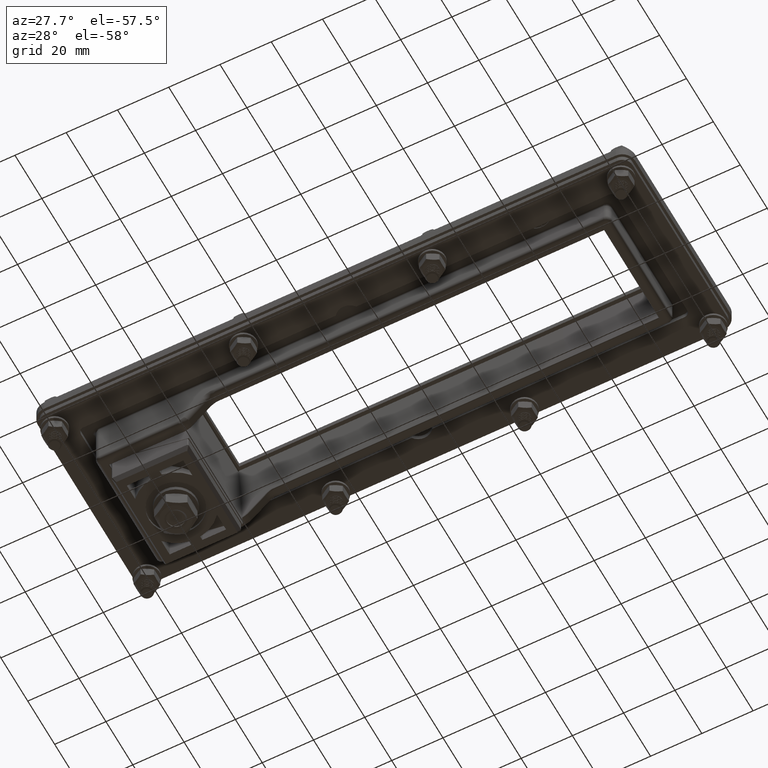
[diagram: clean part render]
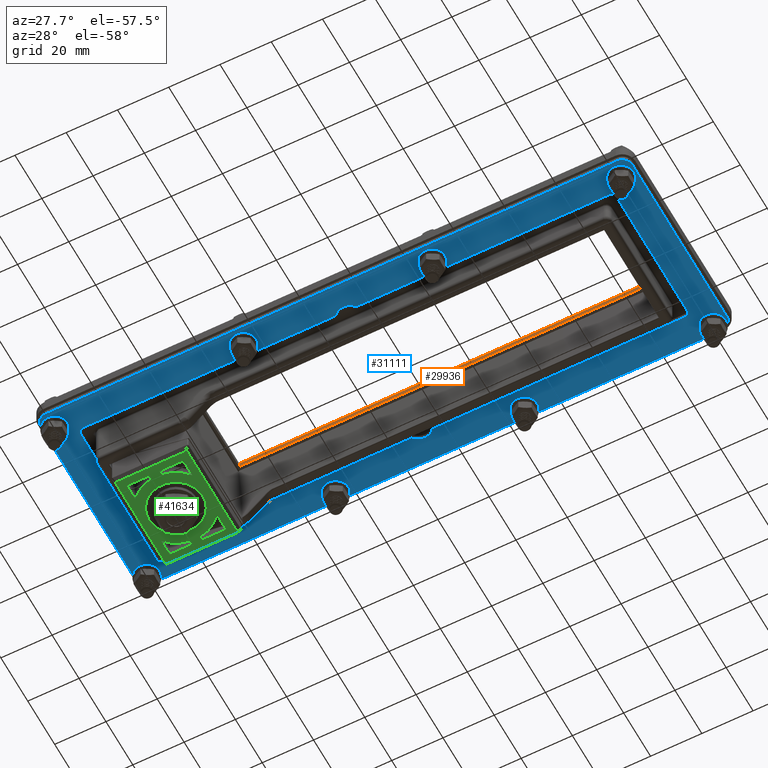
[diagram: same view with three faces highlighted in distinct colors, each labeled with its STEP entity id]
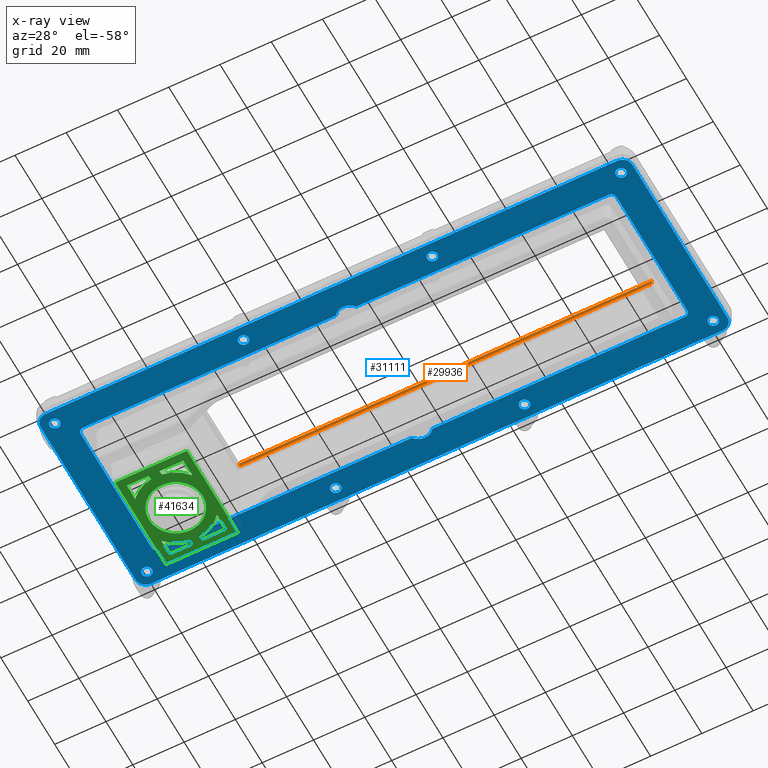
[diagram: x-ray of the same camera — body ghosted, the three highlighted faces saturated]
A machine part, auxiliary view with three faces highlighted in distinct colors.
The next image is the same camera in x-ray (body ghosted, the three faces saturated) — at least one of them is partly hidden behind the body in this view.
Their STEP definitions:

[orange] entity #29936 — the highlighted planar face has unit normal (0, 1, 0).
#16819=CARTESIAN_POINT('',(-66.220740230695725,18.550000000000008,21.0));
#16820=VERTEX_POINT('',#16819);
#16837=CARTESIAN_POINT('',(94.800000000000011,18.550000000000043,21.0));
#16838=VERTEX_POINT('',#16837);
#16845=CARTESIAN_POINT('',(94.800000000000011,18.550000000000043,20.999999999999996));
#16846=DIRECTION('',(-1.0,0.0,0.0));
#16847=VECTOR('',#16846,161.02074023069574);
#16848=LINE('',#16845,#16847);
#16849=EDGE_CURVE('',#16838,#16820,#16848,.T.);
#29428=CARTESIAN_POINT('',(-66.220740230695725,18.550000000000011,22.999999999999993));
#29429=VERTEX_POINT('',#29428);
#29430=CARTESIAN_POINT('',(94.800000000000011,18.550000000000043,23.0));
#29431=VERTEX_POINT('',#29430);
#29432=CARTESIAN_POINT('',(-66.220740230695725,18.550000000000008,22.999999999999993));
#29433=DIRECTION('',(1.0,0.0,0.0));
#29434=VECTOR('',#29433,161.02074023069574);
#29435=LINE('',#29432,#29434);
#29436=EDGE_CURVE('',#29429,#29431,#29435,.T.);
#29886=CARTESIAN_POINT('',(-66.220740230695725,18.550000000000008,22.999999999999993));
#29887=DIRECTION('',(0.0,0.0,-1.0));
#29888=VECTOR('',#29887,1.999999999999993);
#29889=LINE('',#29886,#29888);
#29890=EDGE_CURVE('',#29429,#16820,#29889,.T.);
#29920=CARTESIAN_POINT('',(-94.800000000000011,18.550000000000004,22.0));
#29921=DIRECTION('',(0.0,1.0,0.0));
#29922=DIRECTION('',(0.0,0.0,1.0));
#29923=AXIS2_PLACEMENT_3D('',#29920,#29921,#29922);
#29924=PLANE('',#29923);
#29925=ORIENTED_EDGE('',*,*,#29890,.T.);
#29926=ORIENTED_EDGE('',*,*,#16849,.F.);
#29927=CARTESIAN_POINT('',(94.800000000000011,18.550000000000043,21.000000000000004));
#29928=DIRECTION('',(0.0,0.0,1.0));
#29929=VECTOR('',#29928,1.999999999999993);
#29930=LINE('',#29927,#29929);
#29931=EDGE_CURVE('',#16838,#29431,#29930,.T.);
#29932=ORIENTED_EDGE('',*,*,#29931,.T.);
#29933=ORIENTED_EDGE('',*,*,#29436,.F.);
#29934=EDGE_LOOP('',(#29925,#29926,#29932,#29933));
#29935=FACE_OUTER_BOUND('',#29934,.T.);
#29936=ADVANCED_FACE('',(#29935),#29924,.F.);

[blue] entity #31111 — the highlighted planar face has unit normal (0, -0, 1).
#30155=CARTESIAN_POINT('',(255.52880737188866,66.758722795596711,0.0));
#30156=VERTEX_POINT('',#30155);
#30163=CARTESIAN_POINT('',(157.02880737188869,66.758722795596711,0.0));
#30164=VERTEX_POINT('',#30163);
#30165=CARTESIAN_POINT('',(157.02880737188866,66.758722795596697,0.0));
#30166=DIRECTION('',(1.0,0.0,0.0));
#30167=VECTOR('',#30166,98.499999999999972);
#30168=LINE('',#30165,#30167);
#30169=EDGE_CURVE('',#30164,#30156,#30168,.T.);
#30195=CARTESIAN_POINT('',(149.0288073718886,66.75872279559664,0.0));
#30196=VERTEX_POINT('',#30195);
#30197=CARTESIAN_POINT('',(153.0288073718886,69.758722795596611,0.0));
#30198=DIRECTION('',(0.0,0.0,1.0));
#30199=DIRECTION('',(-0.800000000000003,-0.599999999999995,0.0));
#30200=AXIS2_PLACEMENT_3D('',#30197,#30198,#30199);
#30201=CIRCLE('',#30200,5.0);
#30202=EDGE_CURVE('',#30196,#30164,#30201,.T.);
#30227=CARTESIAN_POINT('',(50.528807371888661,66.758722795596611,0.0));
#30228=VERTEX_POINT('',#30227);
#30229=CARTESIAN_POINT('',(50.528807371888661,66.758722795596597,0.0));
#30230=DIRECTION('',(1.0,0.0,0.0));
#30231=VECTOR('',#30230,98.499999999999915);
#30232=LINE('',#30229,#30231);
#30233=EDGE_CURVE('',#30228,#30196,#30232,.T.);
#30259=CARTESIAN_POINT('',(48.528807371888661,68.758722795596611,0.0));
#30260=VERTEX_POINT('',#30259);
#30261=CARTESIAN_POINT('',(50.528807371888661,68.758722795596611,0.0));
#30262=DIRECTION('',(0.0,0.0,1.0));
#30263=DIRECTION('',(-1.0,0.0,0.0));
#30264=AXIS2_PLACEMENT_3D('',#30261,#30262,#30263);
#30265=CIRCLE('',#30264,2.000000000000002);
#30266=EDGE_CURVE('',#30260,#30228,#30265,.T.);
#30291=CARTESIAN_POINT('',(48.528807371888661,121.25872279559647,0.0));
#30292=VERTEX_POINT('',#30291);
#30293=CARTESIAN_POINT('',(48.528807371888675,121.25872279559647,0.0));
#30294=DIRECTION('',(0.0,-1.0,0.0));
#30295=VECTOR('',#30294,52.499999999999858);
#30296=LINE('',#30293,#30295);
#30297=EDGE_CURVE('',#30292,#30260,#30296,.T.);
#30323=CARTESIAN_POINT('',(50.528807371888661,123.25872279559648,0.0));
#30324=VERTEX_POINT('',#30323);
#30325=CARTESIAN_POINT('',(50.528807371888661,121.25872279559647,0.0));
#30326=DIRECTION('',(0.0,0.0,1.0));
#30327=DIRECTION('',(0.0,1.0,0.0));
#30328=AXIS2_PLACEMENT_3D('',#30325,#30326,#30327);
#30329=CIRCLE('',#30328,1.999999999999993);
#30330=EDGE_CURVE('',#30324,#30292,#30329,.T.);
#30355=CARTESIAN_POINT('',(149.0288073718886,123.25872279559648,0.0));
#30356=VERTEX_POINT('',#30355);
#30357=CARTESIAN_POINT('',(149.0288073718886,123.2587227955965,0.0));
#30358=DIRECTION('',(-1.0,0.0,0.0));
#30359=VECTOR('',#30358,98.499999999999943);
#30360=LINE('',#30357,#30359);
#30361=EDGE_CURVE('',#30356,#30324,#30360,.T.);
#30387=CARTESIAN_POINT('',(157.0288073718886,123.25872279559647,0.0));
#30388=VERTEX_POINT('',#30387);
#30389=CARTESIAN_POINT('',(153.0288073718886,120.25872279559648,0.0));
#30390=DIRECTION('',(0.0,0.0,1.0));
#30391=DIRECTION('',(0.800000000000002,0.599999999999997,0.0));
#30392=AXIS2_PLACEMENT_3D('',#30389,#30390,#30391);
#30393=CIRCLE('',#30392,5.0);
#30394=EDGE_CURVE('',#30388,#30356,#30393,.T.);
#30419=CARTESIAN_POINT('',(255.52880737188866,123.25872279559648,0.0));
#30420=VERTEX_POINT('',#30419);
#30421=CARTESIAN_POINT('',(255.52880737188866,123.25872279559648,0.0));
#30422=DIRECTION('',(-1.0,0.0,0.0));
#30423=VECTOR('',#30422,98.500000000000057);
#30424=LINE('',#30421,#30423);
#30425=EDGE_CURVE('',#30420,#30388,#30424,.T.);
#30451=CARTESIAN_POINT('',(257.52880737188866,121.25872279559647,0.0));
#30452=VERTEX_POINT('',#30451);
#30453=CARTESIAN_POINT('',(255.52880737188866,121.2587227955965,0.0));
#30454=DIRECTION('',(0.0,0.0,1.0));
#30455=DIRECTION('',(1.0,0.0,0.0));
#30456=AXIS2_PLACEMENT_3D('',#30453,#30454,#30455);
#30457=CIRCLE('',#30456,1.999999999999993);
#30458=EDGE_CURVE('',#30452,#30420,#30457,.T.);
#30483=CARTESIAN_POINT('',(257.52880737188866,68.758722795596711,0.0));
#30484=VERTEX_POINT('',#30483);
#30485=CARTESIAN_POINT('',(257.52880737188866,68.758722795596711,0.0));
#30486=DIRECTION('',(0.0,1.0,0.0));
#30487=VECTOR('',#30486,52.499999999999758);
#30488=LINE('',#30485,#30487);
#30489=EDGE_CURVE('',#30484,#30452,#30488,.T.);
#30513=CARTESIAN_POINT('',(255.52880737188866,68.758722795596697,0.0));
#30514=DIRECTION('',(0.0,0.0,1.0));
#30515=DIRECTION('',(0.0,-1.0,0.0));
#30516=AXIS2_PLACEMENT_3D('',#30513,#30514,#30515);
#30517=CIRCLE('',#30516,1.999999999999993);
#30518=EDGE_CURVE('',#30156,#30484,#30517,.T.);
#30540=CARTESIAN_POINT('',(44.528807371888632,60.758722795596583,0.0));
#30541=VERTEX_POINT('',#30540);
#30542=CARTESIAN_POINT('',(42.528807371888632,60.758722795596583,0.0));
#30543=DIRECTION('',(0.0,0.0,1.0));
#30544=DIRECTION('',(-1.0,0.0,0.0));
#30545=AXIS2_PLACEMENT_3D('',#30542,#30543,#30544);
#30546=CIRCLE('',#30545,2.0);
#30547=EDGE_CURVE('',#30541,#30541,#30546,.T.);
#30568=CARTESIAN_POINT('',(265.52880737188866,129.2587227955965,0.0));
#30569=VERTEX_POINT('',#30568);
#30570=CARTESIAN_POINT('',(263.52880737188866,129.2587227955965,0.0));
#30571=DIRECTION('',(0.0,0.0,1.0));
#30572=DIRECTION('',(-1.0,0.0,0.0));
#30573=AXIS2_PLACEMENT_3D('',#30570,#30571,#30572);
#30574=CIRCLE('',#30573,2.0);
#30575=EDGE_CURVE('',#30569,#30569,#30574,.T.);
#30596=CARTESIAN_POINT('',(265.52880737188866,60.758722795596583,0.0));
#30597=VERTEX_POINT('',#30596);
#30598=CARTESIAN_POINT('',(263.52880737188866,60.758722795596583,0.0));
#30599=DIRECTION('',(0.0,0.0,1.0));
#30600=DIRECTION('',(-1.0,0.0,0.0));
#30601=AXIS2_PLACEMENT_3D('',#30598,#30599,#30600);
#30602=CIRCLE('',#30601,2.0);
#30603=EDGE_CURVE('',#30597,#30597,#30602,.T.);
#30624=CARTESIAN_POINT('',(118.19880737188856,129.25872279559644,0.0));
#30625=VERTEX_POINT('',#30624);
#30626=CARTESIAN_POINT('',(116.19880737188858,129.25872279559644,0.0));
#30627=DIRECTION('',(0.0,0.0,1.0));
#30628=DIRECTION('',(-1.0,0.0,0.0));
#30629=AXIS2_PLACEMENT_3D('',#30626,#30627,#30628);
#30630=CIRCLE('',#30629,2.0);
#30631=EDGE_CURVE('',#30625,#30625,#30630,.T.);
#30652=CARTESIAN_POINT('',(191.85880737188856,129.25872279559644,0.0));
#30653=VERTEX_POINT('',#30652);
#30654=CARTESIAN_POINT('',(189.85880737188859,129.25872279559644,0.0));
#30655=DIRECTION('',(0.0,0.0,1.0));
#30656=DIRECTION('',(-1.0,0.0,0.0));
#30657=AXIS2_PLACEMENT_3D('',#30654,#30655,#30656);
#30658=CIRCLE('',#30657,2.0);
#30659=EDGE_CURVE('',#30653,#30653,#30658,.T.);
#30680=CARTESIAN_POINT('',(191.86880737188864,60.758722795596583,0.0));
#30681=VERTEX_POINT('',#30680);
#30682=CARTESIAN_POINT('',(189.86880737188866,60.758722795596583,0.0));
#30683=DIRECTION('',(0.0,0.0,1.0));
#30684=DIRECTION('',(-1.0,0.0,0.0));
#30685=AXIS2_PLACEMENT_3D('',#30682,#30683,#30684);
#30686=CIRCLE('',#30685,2.0);
#30687=EDGE_CURVE('',#30681,#30681,#30686,.T.);
#30708=CARTESIAN_POINT('',(118.20880737188864,60.758722795596583,0.0));
#30709=VERTEX_POINT('',#30708);
#30710=CARTESIAN_POINT('',(116.20880737188864,60.758722795596583,0.0));
#30711=DIRECTION('',(0.0,0.0,1.0));
#30712=DIRECTION('',(-1.0,0.0,0.0));
#30713=AXIS2_PLACEMENT_3D('',#30710,#30711,#30712);
#30714=CIRCLE('',#30713,2.0);
#30715=EDGE_CURVE('',#30709,#30709,#30714,.T.);
#30736=CARTESIAN_POINT('',(44.528807371888632,129.2587227955965,0.0));
#30737=VERTEX_POINT('',#30736);
#30738=CARTESIAN_POINT('',(42.528807371888632,129.2587227955965,0.0));
#30739=DIRECTION('',(0.0,0.0,1.0));
#30740=DIRECTION('',(-1.0,0.0,0.0));
#30741=AXIS2_PLACEMENT_3D('',#30738,#30739,#30740);
#30742=CIRCLE('',#30741,2.0);
#30743=EDGE_CURVE('',#30737,#30737,#30742,.T.);
#30763=CARTESIAN_POINT('',(268.52880737188855,59.758722795596611,0.0));
#30764=VERTEX_POINT('',#30763);
#30771=CARTESIAN_POINT('',(268.52880737188855,130.25872279559647,0.0));
#30772=VERTEX_POINT('',#30771);
#30773=CARTESIAN_POINT('',(268.52880737188855,130.25872279559647,0.0));
#30774=DIRECTION('',(0.0,-1.0,0.0));
#30775=VECTOR('',#30774,70.499999999999858);
#30776=LINE('',#30773,#30775);
#30777=EDGE_CURVE('',#30772,#30764,#30776,.T.);
#30802=CARTESIAN_POINT('',(264.52880737188855,55.758722795596611,0.0));
#30803=VERTEX_POINT('',#30802);
#30810=CARTESIAN_POINT('',(264.52880737188855,59.758722795596611,0.0));
#30811=DIRECTION('',(0.0,0.0,-1.0));
#30812=DIRECTION('',(0.0,1.0,0.0));
#30813=AXIS2_PLACEMENT_3D('',#30810,#30811,#30812);
#30814=CIRCLE('',#30813,3.999999999999995);
#30815=EDGE_CURVE('',#30764,#30803,#30814,.T.);
#30834=CARTESIAN_POINT('',(41.528807371888632,55.758722795596611,0.0));
#30835=VERTEX_POINT('',#30834);
#30842=CARTESIAN_POINT('',(264.52880737188855,55.758722795596611,0.0));
#30843=DIRECTION('',(-1.0,0.0,0.0));
#30844=VECTOR('',#30843,222.99999999999994);
#30845=LINE('',#30842,#30844);
#30846=EDGE_CURVE('',#30803,#30835,#30845,.T.);
#30866=CARTESIAN_POINT('',(37.528807371888632,59.758722795596611,0.0));
#30867=VERTEX_POINT('',#30866);
#30874=CARTESIAN_POINT('',(41.528807371888632,59.758722795596611,0.0));
#30875=DIRECTION('',(0.0,0.0,-1.0));
#30876=DIRECTION('',(1.0,0.0,0.0));
#30877=AXIS2_PLACEMENT_3D('',#30874,#30875,#30876);
#30878=CIRCLE('',#30877,4.000000000000004);
#30879=EDGE_CURVE('',#30835,#30867,#30878,.T.);
#30898=CARTESIAN_POINT('',(37.528807371888632,130.2587227955965,0.0));
#30899=VERTEX_POINT('',#30898);
#30906=CARTESIAN_POINT('',(37.528807371888632,59.758722795596611,0.0));
#30907=DIRECTION('',(0.0,1.0,0.0));
#30908=VECTOR('',#30907,70.499999999999886);
#30909=LINE('',#30906,#30908);
#30910=EDGE_CURVE('',#30867,#30899,#30909,.T.);
#30930=CARTESIAN_POINT('',(41.528807371888661,134.2587227955965,0.0));
#30931=VERTEX_POINT('',#30930);
#30938=CARTESIAN_POINT('',(41.528807371888661,130.25872279559647,0.0));
#30939=DIRECTION('',(0.0,0.0,-1.0));
#30940=DIRECTION('',(0.0,-1.0,0.0));
#30941=AXIS2_PLACEMENT_3D('',#30938,#30939,#30940);
#30942=CIRCLE('',#30941,4.000000000000012);
#30943=EDGE_CURVE('',#30899,#30931,#30942,.T.);
#30962=CARTESIAN_POINT('',(264.52880737188866,134.2587227955965,0.0));
#30963=VERTEX_POINT('',#30962);
#30970=CARTESIAN_POINT('',(41.528807371888661,134.2587227955965,0.0));
#30971=DIRECTION('',(1.0,0.0,0.0));
#30972=VECTOR('',#30971,223.0);
#30973=LINE('',#30970,#30972);
#30974=EDGE_CURVE('',#30931,#30963,#30973,.T.);
#30993=CARTESIAN_POINT('',(264.52880737188855,130.25872279559647,0.0));
#30994=DIRECTION('',(0.0,0.0,-1.0));
#30995=DIRECTION('',(-1.0,0.0,0.0));
#30996=AXIS2_PLACEMENT_3D('',#30993,#30994,#30995);
#30997=CIRCLE('',#30996,4.000000000000021);
#30998=EDGE_CURVE('',#30963,#30772,#30997,.T.);
#31058=CARTESIAN_POINT('',(153.0288073718886,95.008722795596555,0.0));
#31059=DIRECTION('',(0.0,0.0,1.0));
#31060=DIRECTION('',(1.0,0.0,0.0));
#31061=AXIS2_PLACEMENT_3D('',#31058,#31059,#31060);
#31062=PLANE('',#31061);
#31063=ORIENTED_EDGE('',*,*,#30998,.T.);
#31064=ORIENTED_EDGE('',*,*,#30777,.T.);
#31065=ORIENTED_EDGE('',*,*,#30815,.T.);
#31066=ORIENTED_EDGE('',*,*,#30846,.T.);
#31067=ORIENTED_EDGE('',*,*,#30879,.T.);
#31068=ORIENTED_EDGE('',*,*,#30910,.T.);
#31069=ORIENTED_EDGE('',*,*,#30943,.T.);
#31070=ORIENTED_EDGE('',*,*,#30974,.T.);
#31071=EDGE_LOOP('',(#31063,#31064,#31065,#31066,#31067,#31068,#31069,#31070));
#31072=FACE_OUTER_BOUND('',#31071,.T.);
#31073=ORIENTED_EDGE('',*,*,#30169,.T.);
#31074=ORIENTED_EDGE('',*,*,#30518,.T.);
#31075=ORIENTED_EDGE('',*,*,#30489,.T.);
#31076=ORIENTED_EDGE('',*,*,#30458,.T.);
#31077=ORIENTED_EDGE('',*,*,#30425,.T.);
#31078=ORIENTED_EDGE('',*,*,#30394,.T.);
#31079=ORIENTED_EDGE('',*,*,#30361,.T.);
#31080=ORIENTED_EDGE('',*,*,#30330,.T.);
#31081=ORIENTED_EDGE('',*,*,#30297,.T.);
#31082=ORIENTED_EDGE('',*,*,#30266,.T.);
#31083=ORIENTED_EDGE('',*,*,#30233,.T.);
#31084=ORIENTED_EDGE('',*,*,#30202,.T.);
#31085=EDGE_LOOP('',(#31073,#31074,#31075,#31076,#31077,#31078,#31079,#31080,#31081,#31082,#31083,#31084));
#31086=FACE_BOUND('',#31085,.T.);
#31087=ORIENTED_EDGE('',*,*,#30547,.T.);
#31088=EDGE_LOOP('',(#31087));
#31089=FACE_BOUND('',#31088,.T.);
#31090=ORIENTED_EDGE('',*,*,#30575,.T.);
#31091=EDGE_LOOP('',(#31090));
#31092=FACE_BOUND('',#31091,.T.);
#31093=ORIENTED_EDGE('',*,*,#30603,.T.);
#31094=EDGE_LOOP('',(#31093));
#31095=FACE_BOUND('',#31094,.T.);
#31096=ORIENTED_EDGE('',*,*,#30631,.T.);
#31097=EDGE_LOOP('',(#31096));
#31098=FACE_BOUND('',#31097,.T.);
#31099=ORIENTED_EDGE('',*,*,#30659,.T.);
#31100=EDGE_LOOP('',(#31099));
#31101=FACE_BOUND('',#31100,.T.);
#31102=ORIENTED_EDGE('',*,*,#30687,.T.);
#31103=EDGE_LOOP('',(#31102));
#31104=FACE_BOUND('',#31103,.T.);
#31105=ORIENTED_EDGE('',*,*,#30715,.T.);
#31106=EDGE_LOOP('',(#31105));
#31107=FACE_BOUND('',#31106,.T.);
#31108=ORIENTED_EDGE('',*,*,#30743,.T.);
#31109=EDGE_LOOP('',(#31108));
#31110=FACE_BOUND('',#31109,.T.);
#31111=ADVANCED_FACE('',(#31072,#31086,#31089,#31092,#31095,#31098,#31101,#31104,#31107,#31110),#31062,.F.);

[green] entity #41634 — the highlighted planar face has unit normal (0, -0, 1).
#41147=CARTESIAN_POINT('',(566.70626329083245,442.98383945658173,13.75));
#41148=VERTEX_POINT('',#41147);
#41149=CARTESIAN_POINT('',(556.20626329083257,442.98383945658173,13.75));
#41150=DIRECTION('',(0.0,0.0,-1.0));
#41151=DIRECTION('',(-1.0,0.0,0.0));
#41152=AXIS2_PLACEMENT_3D('',#41149,#41150,#41151);
#41153=CIRCLE('',#41152,10.5);
#41154=EDGE_CURVE('',#41148,#41148,#41153,.T.);
#41164=CARTESIAN_POINT('',(569.95626329083257,461.43662586108172,13.75));
#41165=VERTEX_POINT('',#41164);
#41183=CARTESIAN_POINT('',(569.50904969533235,461.88383945658182,13.75));
#41184=VERTEX_POINT('',#41183);
#41191=CARTESIAN_POINT('',(569.39724629645741,461.3248224622069,13.75));
#41192=DIRECTION('',(0.0,0.0,-1.0));
#41193=DIRECTION('',(0.707106781186594,0.707106781186501,0.0));
#41194=AXIS2_PLACEMENT_3D('',#41191,#41192,#41193);
#41195=ELLIPSE('',#41194,0.612372435695783,0.5);
#41196=EDGE_CURVE('',#41184,#41165,#41195,.T.);
#41257=CARTESIAN_POINT('',(569.95626329083257,424.53105305208169,13.75));
#41258=VERTEX_POINT('',#41257);
#41259=CARTESIAN_POINT('',(569.95626329083257,461.43662586108172,13.75));
#41260=DIRECTION('',(0.0,-1.0,0.0));
#41261=VECTOR('',#41260,36.905572809000034);
#41262=LINE('',#41259,#41261);
#41263=EDGE_CURVE('',#41165,#41258,#41262,.T.);
#41297=CARTESIAN_POINT('',(569.50904969533235,424.0838394565817,13.75));
#41298=VERTEX_POINT('',#41297);
#41315=CARTESIAN_POINT('',(569.39724629645741,424.6428564509564,13.75));
#41316=DIRECTION('',(0.0,0.0,-1.0));
#41317=DIRECTION('',(0.707106781186594,-0.707106781186501,0.0));
#41318=AXIS2_PLACEMENT_3D('',#41315,#41316,#41317);
#41319=ELLIPSE('',#41318,0.612372435695783,0.5);
#41320=EDGE_CURVE('',#41258,#41298,#41319,.T.);
#41374=CARTESIAN_POINT('',(542.40347688633233,424.0838394565817,13.75));
#41375=VERTEX_POINT('',#41374);
#41382=CARTESIAN_POINT('',(541.95626329083245,424.53105305208169,13.75));
#41383=VERTEX_POINT('',#41382);
#41384=CARTESIAN_POINT('',(542.51528028520738,424.64285645095674,13.75));
#41385=DIRECTION('',(0.0,0.0,-1.0));
#41386=DIRECTION('',(-0.707106781186548,-0.707106781186548,0.0));
#41387=AXIS2_PLACEMENT_3D('',#41384,#41385,#41386);
#41388=ELLIPSE('',#41387,0.612372435695794,0.5);
#41389=EDGE_CURVE('',#41375,#41383,#41388,.T.);
#41415=CARTESIAN_POINT('',(541.95626329083245,461.43662586108184,13.75));
#41416=VERTEX_POINT('',#41415);
#41417=CARTESIAN_POINT('',(541.95626329083245,424.53105305208169,13.75));
#41418=DIRECTION('',(0.0,1.0,0.0));
#41419=VECTOR('',#41418,36.905572809000148);
#41420=LINE('',#41417,#41419);
#41421=EDGE_CURVE('',#41383,#41416,#41420,.T.);
#41458=CARTESIAN_POINT('',(540.95626329083245,462.88383945658182,13.75));
#41459=DIRECTION('',(0.0,0.0,-1.0));
#41460=DIRECTION('',(-1.0,0.0,0.0));
#41461=AXIS2_PLACEMENT_3D('',#41458,#41459,#41460);
#41462=PLANE('',#41461);
#41463=ORIENTED_EDGE('',*,*,#41196,.F.);
#41464=CARTESIAN_POINT('',(542.40347688633233,461.88383945658182,13.75));
#41465=VERTEX_POINT('',#41464);
#41466=CARTESIAN_POINT('',(542.40347688633233,461.88383945658182,13.75));
#41467=DIRECTION('',(1.0,0.0,0.0));
#41468=VECTOR('',#41467,27.105572809000023);
#41469=LINE('',#41466,#41468);
#41470=EDGE_CURVE('',#41465,#41184,#41469,.T.);
#41471=ORIENTED_EDGE('',*,*,#41470,.F.);
#41472=CARTESIAN_POINT('',(542.51528028520738,461.3248224622069,13.75));
#41473=DIRECTION('',(0.0,0.0,-1.0));
#41474=DIRECTION('',(-0.707106781186548,0.707106781186548,0.0));
#41475=AXIS2_PLACEMENT_3D('',#41472,#41473,#41474);
#41476=ELLIPSE('',#41475,0.612372435695794,0.5);
#41477=EDGE_CURVE('',#41416,#41465,#41476,.T.);
#41478=ORIENTED_EDGE('',*,*,#41477,.F.);
#41479=ORIENTED_EDGE('',*,*,#41421,.F.);
#41480=ORIENTED_EDGE('',*,*,#41389,.F.);
#41481=CARTESIAN_POINT('',(569.50904969533235,424.0838394565817,13.75));
#41482=DIRECTION('',(-1.0,0.0,0.0));
#41483=VECTOR('',#41482,27.105572809000023);
#41484=LINE('',#41481,#41483);
#41485=EDGE_CURVE('',#41298,#41375,#41484,.T.);
#41486=ORIENTED_EDGE('',*,*,#41485,.F.);
#41487=ORIENTED_EDGE('',*,*,#41320,.F.);
#41488=ORIENTED_EDGE('',*,*,#41263,.F.);
#41489=EDGE_LOOP('',(#41463,#41471,#41478,#41479,#41480,#41486,#41487,#41488));
#41490=FACE_OUTER_BOUND('',#41489,.T.);
#41491=ORIENTED_EDGE('',*,*,#41154,.T.);
#41492=EDGE_LOOP('',(#41491));
#41493=FACE_BOUND('',#41492,.T.);
#41494=CARTESIAN_POINT('',(554.20626329083245,457.34524607292684,13.75));
#41495=VERTEX_POINT('',#41494);
#41496=CARTESIAN_POINT('',(544.95626329083257,452.13192668834768,13.75));
#41497=VERTEX_POINT('',#41496);
#41498=CARTESIAN_POINT('',(556.20626329083257,442.98383945658173,13.75));
#41499=DIRECTION('',(0.0,0.0,1.0));
#41500=DIRECTION('',(0.0,1.0,0.0));
#41501=AXIS2_PLACEMENT_3D('',#41498,#41499,#41500);
#41502=CIRCLE('',#41501,14.500000000000002);
#41503=EDGE_CURVE('',#41495,#41497,#41502,.T.);
#41504=ORIENTED_EDGE('',*,*,#41503,.T.);
#41505=CARTESIAN_POINT('',(544.95626329083257,458.88383945658177,13.75));
#41506=VERTEX_POINT('',#41505);
#41507=CARTESIAN_POINT('',(544.95626329083257,452.13192668834768,13.75));
#41508=DIRECTION('',(0.0,1.0,0.0));
#41509=VECTOR('',#41508,6.751912768234092);
#41510=LINE('',#41507,#41509);
#41511=EDGE_CURVE('',#41497,#41506,#41510,.T.);
#41512=ORIENTED_EDGE('',*,*,#41511,.T.);
#41513=CARTESIAN_POINT('',(554.20626329083245,458.88383945658177,13.75));
#41514=VERTEX_POINT('',#41513);
#41515=CARTESIAN_POINT('',(544.95626329083257,458.88383945658177,13.75));
#41516=DIRECTION('',(1.0,0.0,0.0));
#41517=VECTOR('',#41516,9.25);
#41518=LINE('',#41515,#41517);
#41519=EDGE_CURVE('',#41506,#41514,#41518,.T.);
#41520=ORIENTED_EDGE('',*,*,#41519,.T.);
#41521=CARTESIAN_POINT('',(554.20626329083245,458.88383945658177,13.75));
#41522=DIRECTION('',(0.0,-1.0,0.0));
#41523=VECTOR('',#41522,1.538593383654927);
#41524=LINE('',#41521,#41523);
#41525=EDGE_CURVE('',#41514,#41495,#41524,.T.);
#41526=ORIENTED_EDGE('',*,*,#41525,.T.);
#41527=EDGE_LOOP('',(#41504,#41512,#41520,#41526));
#41528=FACE_BOUND('',#41527,.T.);
#41529=CARTESIAN_POINT('',(566.95626329083211,452.71458968459615,13.75));
#41530=VERTEX_POINT('',#41529);
#41531=CARTESIAN_POINT('',(558.20626329083245,457.34524607292684,13.75));
#41532=VERTEX_POINT('',#41531);
#41533=CARTESIAN_POINT('',(556.20626329083257,442.98383945658173,13.75));
#41534=DIRECTION('',(0.0,0.0,1.0));
#41535=DIRECTION('',(0.0,1.0,0.0));
#41536=AXIS2_PLACEMENT_3D('',#41533,#41534,#41535);
#41537=CIRCLE('',#41536,14.500000000000002);
#41538=EDGE_CURVE('',#41530,#41532,#41537,.T.);
#41539=ORIENTED_EDGE('',*,*,#41538,.T.);
#41540=CARTESIAN_POINT('',(558.20626329083245,458.88383945658177,13.75));
#41541=VERTEX_POINT('',#41540);
#41542=CARTESIAN_POINT('',(558.20626329083245,457.34524607292684,13.75));
#41543=DIRECTION('',(0.0,1.0,0.0));
#41544=VECTOR('',#41543,1.538593383654927);
#41545=LINE('',#41542,#41544);
#41546=EDGE_CURVE('',#41532,#41541,#41545,.T.);
#41547=ORIENTED_EDGE('',*,*,#41546,.T.);
#41548=CARTESIAN_POINT('',(566.95626329083211,458.88383945658177,13.75));
#41549=VERTEX_POINT('',#41548);
#41550=CARTESIAN_POINT('',(558.20626329083245,458.88383945658177,13.75));
#41551=DIRECTION('',(1.0,0.0,0.0));
#41552=VECTOR('',#41551,8.749999999999659);
#41553=LINE('',#41550,#41552);
#41554=EDGE_CURVE('',#41541,#41549,#41553,.T.);
#41555=ORIENTED_EDGE('',*,*,#41554,.T.);
#41556=CARTESIAN_POINT('',(566.95626329083211,458.88383945658177,13.75));
#41557=DIRECTION('',(0.0,-1.0,0.0));
#41558=VECTOR('',#41557,6.169249771985619);
#41559=LINE('',#41556,#41558);
#41560=EDGE_CURVE('',#41549,#41530,#41559,.T.);
#41561=ORIENTED_EDGE('',*,*,#41560,.T.);
#41562=EDGE_LOOP('',(#41539,#41547,#41555,#41561));
#41563=FACE_BOUND('',#41562,.T.);
#41564=CARTESIAN_POINT('',(544.95626329083257,433.83575222481579,13.75));
#41565=VERTEX_POINT('',#41564);
#41566=CARTESIAN_POINT('',(554.20626329083245,428.62243284023663,13.75));
#41567=VERTEX_POINT('',#41566);
#41568=CARTESIAN_POINT('',(556.20626329083257,442.98383945658173,13.75));
#41569=DIRECTION('',(0.0,0.0,1.0));
#41570=DIRECTION('',(0.0,1.0,0.0));
#41571=AXIS2_PLACEMENT_3D('',#41568,#41569,#41570);
#41572=CIRCLE('',#41571,14.500000000000002);
#41573=EDGE_CURVE('',#41565,#41567,#41572,.T.);
#41574=ORIENTED_EDGE('',*,*,#41573,.T.);
#41575=CARTESIAN_POINT('',(554.20626329083245,427.0838394565817,13.75));
#41576=VERTEX_POINT('',#41575);
#41577=CARTESIAN_POINT('',(554.20626329083245,428.62243284023663,13.75));
#41578=DIRECTION('',(0.0,-1.0,0.0));
#41579=VECTOR('',#41578,1.538593383654927);
#41580=LINE('',#41577,#41579);
#41581=EDGE_CURVE('',#41567,#41576,#41580,.T.);
#41582=ORIENTED_EDGE('',*,*,#41581,.T.);
#41583=CARTESIAN_POINT('',(544.95626329083257,427.0838394565817,13.75));
#41584=VERTEX_POINT('',#41583);
#41585=CARTESIAN_POINT('',(554.20626329083245,427.0838394565817,13.75));
#41586=DIRECTION('',(-1.0,0.0,0.0));
#41587=VECTOR('',#41586,9.25);
#41588=LINE('',#41585,#41587);
#41589=EDGE_CURVE('',#41576,#41584,#41588,.T.);
#41590=ORIENTED_EDGE('',*,*,#41589,.T.);
#41591=CARTESIAN_POINT('',(544.95626329083257,427.0838394565817,13.75));
#41592=DIRECTION('',(0.0,1.0,0.0));
#41593=VECTOR('',#41592,6.751912768234092);
#41594=LINE('',#41591,#41593);
#41595=EDGE_CURVE('',#41584,#41565,#41594,.T.);
#41596=ORIENTED_EDGE('',*,*,#41595,.T.);
#41597=EDGE_LOOP('',(#41574,#41582,#41590,#41596));
#41598=FACE_BOUND('',#41597,.T.);
#41599=CARTESIAN_POINT('',(558.20626329083245,428.62243284023663,13.75));
#41600=VERTEX_POINT('',#41599);
#41601=CARTESIAN_POINT('',(566.95626329083245,433.25308922856732,13.75));
#41602=VERTEX_POINT('',#41601);
#41603=CARTESIAN_POINT('',(556.20626329083257,442.98383945658173,13.75));
#41604=DIRECTION('',(0.0,0.0,1.0));
#41605=DIRECTION('',(0.0,1.0,0.0));
#41606=AXIS2_PLACEMENT_3D('',#41603,#41604,#41605);
#41607=CIRCLE('',#41606,14.500000000000002);
#41608=EDGE_CURVE('',#41600,#41602,#41607,.T.);
#41609=ORIENTED_EDGE('',*,*,#41608,.T.);
#41610=CARTESIAN_POINT('',(566.95626329083245,427.0838394565817,13.75));
#41611=VERTEX_POINT('',#41610);
#41612=CARTESIAN_POINT('',(566.95626329083245,433.25308922856732,13.75));
#41613=DIRECTION('',(0.0,-1.0,0.0));
#41614=VECTOR('',#41613,6.169249771985619);
#41615=LINE('',#41612,#41614);
#41616=EDGE_CURVE('',#41602,#41611,#41615,.T.);
#41617=ORIENTED_EDGE('',*,*,#41616,.T.);
#41618=CARTESIAN_POINT('',(558.20626329083245,427.0838394565817,13.75));
#41619=VERTEX_POINT('',#41618);
#41620=CARTESIAN_POINT('',(566.95626329083245,427.0838394565817,13.75));
#41621=DIRECTION('',(-1.0,0.0,0.0));
#41622=VECTOR('',#41621,8.75);
#41623=LINE('',#41620,#41622);
#41624=EDGE_CURVE('',#41611,#41619,#41623,.T.);
#41625=ORIENTED_EDGE('',*,*,#41624,.T.);
#41626=CARTESIAN_POINT('',(558.20626329083245,427.0838394565817,13.75));
#41627=DIRECTION('',(0.0,1.0,0.0));
#41628=VECTOR('',#41627,1.538593383654927);
#41629=LINE('',#41626,#41628);
#41630=EDGE_CURVE('',#41619,#41600,#41629,.T.);
#41631=ORIENTED_EDGE('',*,*,#41630,.T.);
#41632=EDGE_LOOP('',(#41609,#41617,#41625,#41631));
#41633=FACE_BOUND('',#41632,.T.);
#41634=ADVANCED_FACE('',(#41490,#41493,#41528,#41563,#41598,#41633),#41462,.F.);